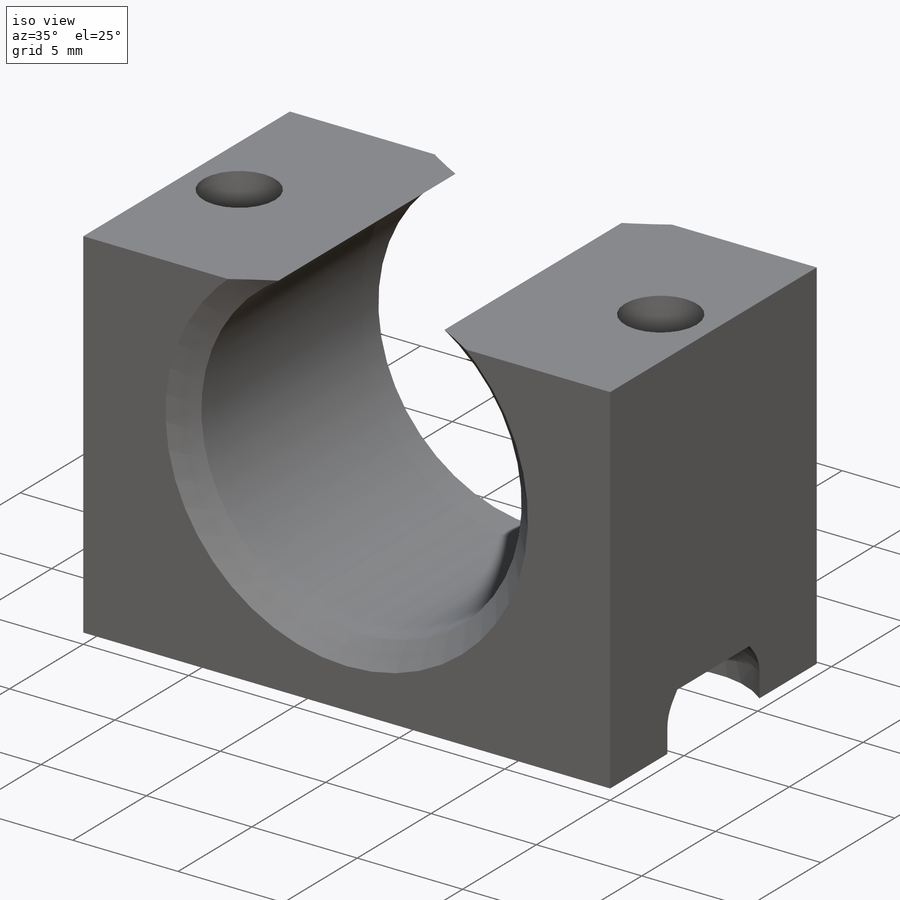
[diagram: iso view]
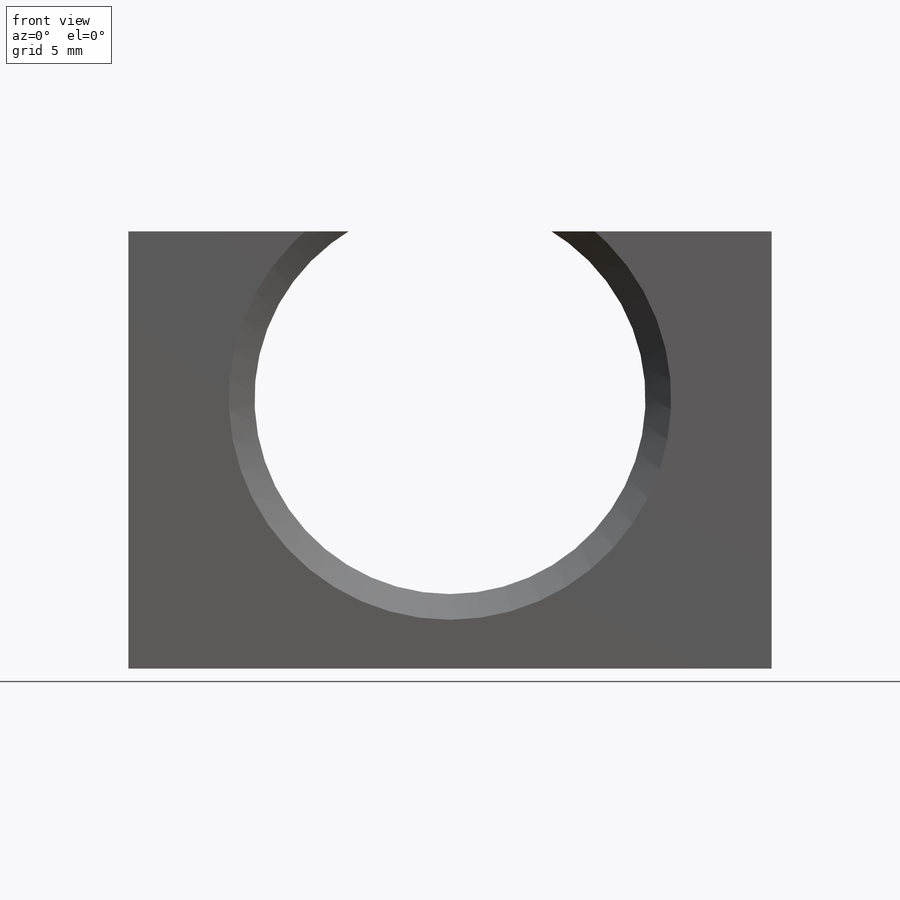
[diagram: front view]
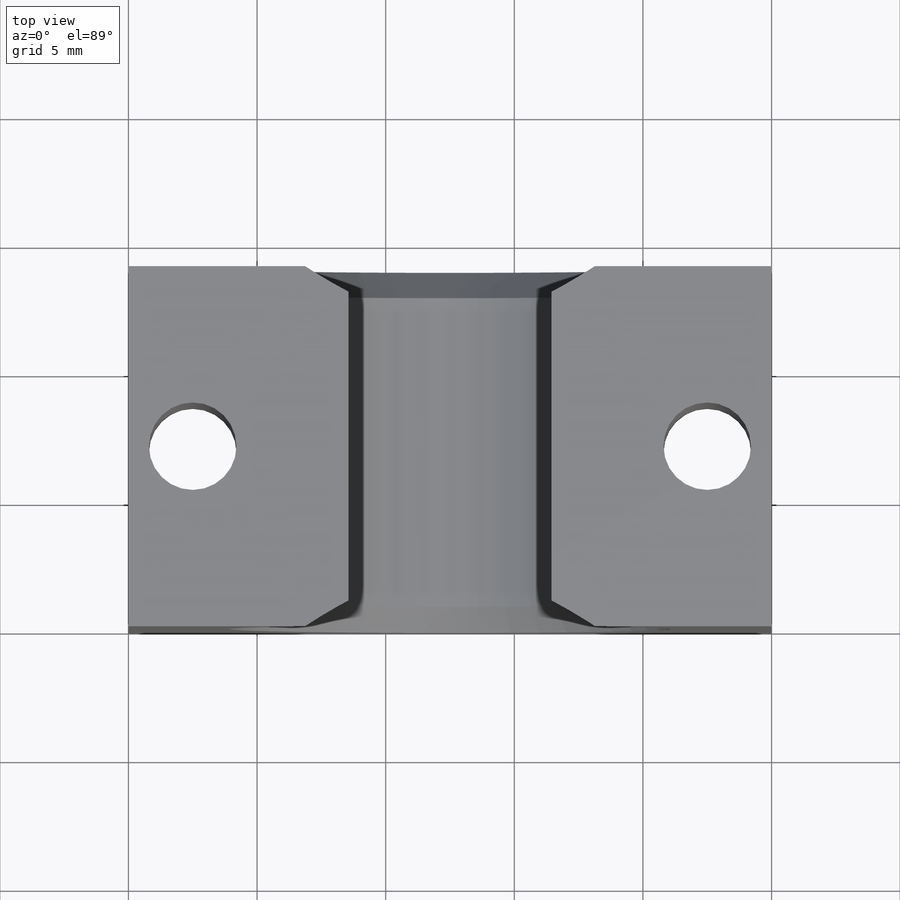
[diagram: top view]
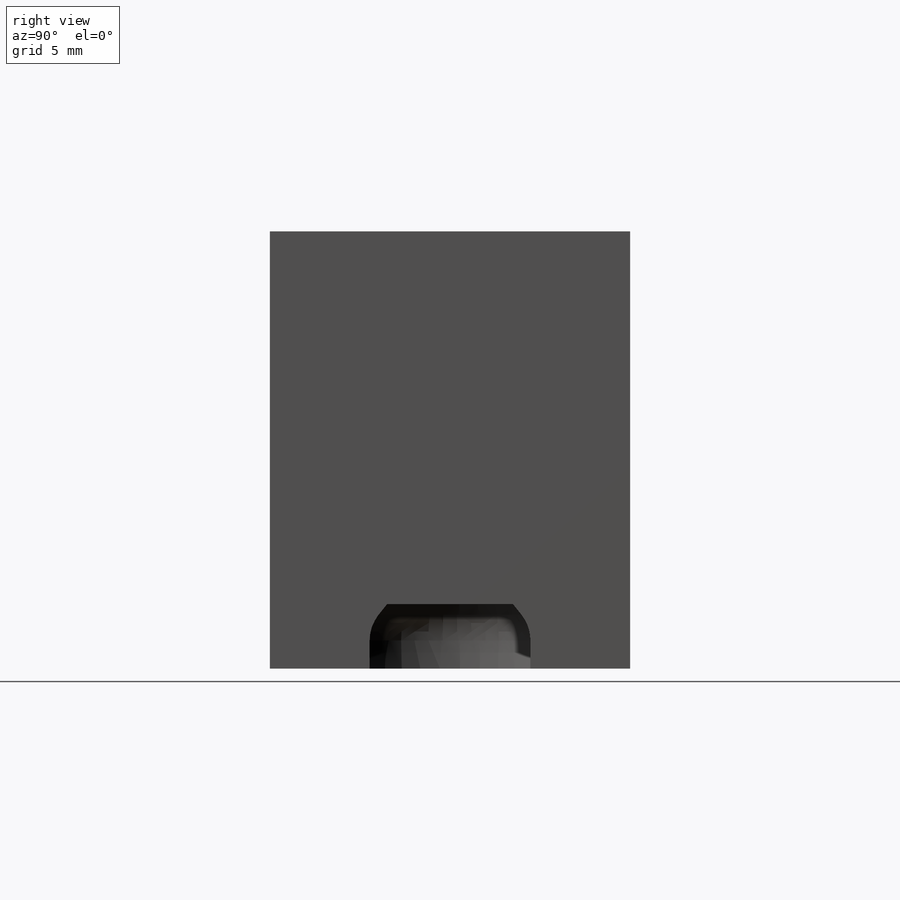
[diagram: right view]
SOLIDWORKS PART (.sldprt)
format: sldprt  version: not decoded by parser v0  size: 252,416 bytes
history: native  units: mm
features: sketch x5, cut_extrude x2, chamfer x2, material x1, extrude x1, hole x1, fillet x1 (+11 scaffold rows collapsed)
feature tree (24):
  scaffold x11  (default folders/planes/origin — collapsed)
  material  "6061 Alloy"
  sketch  "Sketch1"  dims[D1=14.0mm D2=25.0mm]
  extrude  "Boss-Extrude1"  Depth=17mm
  sketch  "Sketch2"  dims[D1=7.6mm D2=10.5mm D3=12.5mm]
  cut_extrude  "Cut-Extrude1"  [1 undecoded]
  hole  "Ø3.4 (3.4) Diameter Hole1"  Diameter=3.4mm Depth=17mm
  sketch  "Sketch4"  dims[D1=7.0mm D2=2.5mm D3=2.5mm]
  sketch  "Sketch3"  dims[hole-wizard template sketch: 60 standard entries collapsed; hole parameters kept: c18.Thru Hole Depth=17.0mm]
  sketch  "Sketch5"  dims[D1=8.0mm]
  cut_extrude  "Cut-Extrude2"  Depth=2.5mm
  chamfer  "Chamfer1"  Distance=1mm Angle=45deg
  chamfer  "Chamfer2"  Distance=0.5mm Angle=60deg
  fillet  "Fillet1"  Radius=2mm
decode coverage: 11 of 12 modeling features carry decoded parameters
note: ~ marks probable driven/reference dimensions
note: 1 parameter value undecoded
note: suppression state not decoded; provenance and decode notes live in map.json
